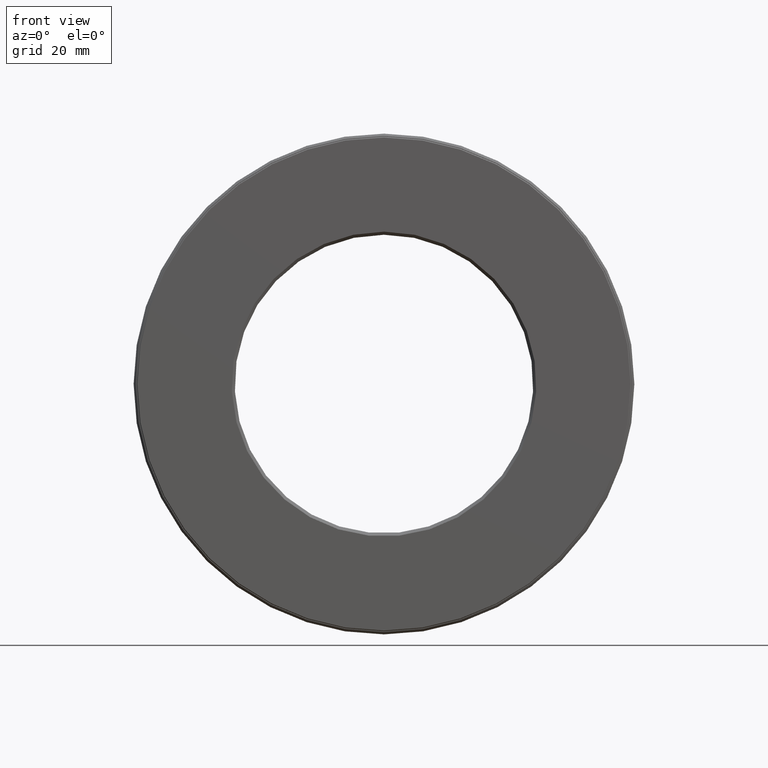
[diagram: clean part render]
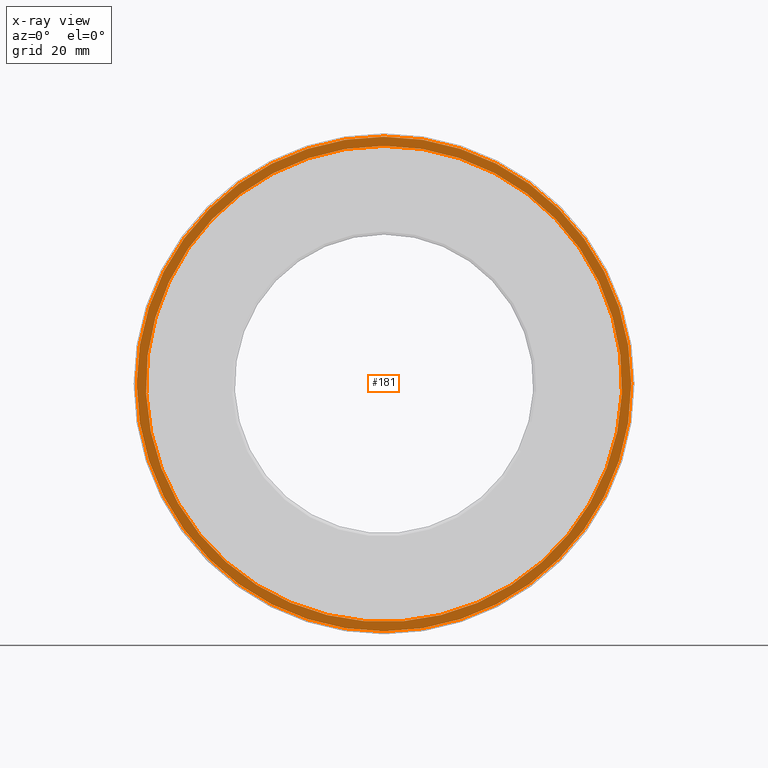
[diagram: x-ray — body ghosted, one internal face saturated and labeled with its STEP entity id]
A machine part, front view, then the same camera in x-ray: the body is ghosted and one INTERNAL B-rep face — a face not visible from any outside direction — is saturated and labeled: STEP entity #181.
In plain terms, the highlighted planar face has unit normal (-0, 1, 0).
Its self-contained STEP definition (entity closure, byte-faithful):
#14 = CARTESIAN_POINT ( 'NONE',  ( 0.0000000000000000000, 1.152499999999999900, 1.605000000000000000 ) ) ;
#17 = EDGE_LOOP ( 'NONE', ( #297 ) ) ;
#79 = AXIS2_PLACEMENT_3D ( 'NONE', #505, #531, #201 ) ;
#109 = CARTESIAN_POINT ( 'NONE',  ( 0.0000000000000000000, 1.152499999999999900, 0.0000000000000000000 ) ) ;
#114 = PLANE ( 'NONE',  #79 ) ;
#117 = EDGE_LOOP ( 'NONE', ( #342 ) ) ;
#174 = FACE_BOUND ( 'NONE', #17, .T. ) ;
#181 = ADVANCED_FACE ( 'NONE', ( #370, #174 ), #114, .F. ) ;
#187 = CARTESIAN_POINT ( 'NONE',  ( 0.0000000000000000000, 1.152499999999999900, 1.545000000000000200 ) ) ;
#201 = DIRECTION ( 'NONE',  ( 0.0000000000000000000, 0.0000000000000000000, 1.000000000000000000 ) ) ;
#215 = VERTEX_POINT ( 'NONE', #187 ) ;
#268 = CARTESIAN_POINT ( 'NONE',  ( 0.0000000000000000000, 1.152499999999999900, 0.0000000000000000000 ) ) ;
#289 = EDGE_CURVE ( 'NONE', #582, #582, #462, .T. ) ;
#294 = DIRECTION ( 'NONE',  ( -0.0000000000000000000, 1.000000000000000000, -0.0000000000000000000 ) ) ;
#297 = ORIENTED_EDGE ( 'NONE', *, *, #567, .T. ) ;
#342 = ORIENTED_EDGE ( 'NONE', *, *, #289, .F. ) ;
#370 = FACE_OUTER_BOUND ( 'NONE', #117, .T. ) ;
#376 = AXIS2_PLACEMENT_3D ( 'NONE', #268, #415, #553 ) ;
#401 = CIRCLE ( 'NONE', #376, 1.545000000000000200 ) ;
#415 = DIRECTION ( 'NONE',  ( -0.0000000000000000000, 1.000000000000000000, -0.0000000000000000000 ) ) ;
#441 = DIRECTION ( 'NONE',  ( 0.0000000000000000000, 0.0000000000000000000, 1.000000000000000000 ) ) ;
#462 = CIRCLE ( 'NONE', #536, 1.605000000000000000 ) ;
#505 = CARTESIAN_POINT ( 'NONE',  ( 0.0000000000000000000, 1.152499999999999900, 0.0000000000000000000 ) ) ;
#531 = DIRECTION ( 'NONE',  ( -0.0000000000000000000, 1.000000000000000000, 0.0000000000000000000 ) ) ;
#536 = AXIS2_PLACEMENT_3D ( 'NONE', #109, #294, #441 ) ;
#553 = DIRECTION ( 'NONE',  ( 0.0000000000000000000, 0.0000000000000000000, 1.000000000000000000 ) ) ;
#567 = EDGE_CURVE ( 'NONE', #215, #215, #401, .T. ) ;
#582 = VERTEX_POINT ( 'NONE', #14 ) ;